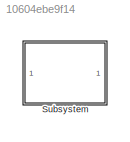
MODEL slx_10604ebe9f14
KIND library
CONFIG AbsTol = auto
CONFIG EnableMultiTasking = off
CONFIG FixedStep = auto
CONFIG MaxStep = auto
CONFIG MinStep = auto
CONFIG RelTol = 1e-3
CONFIG SampleTimeConstraint = Unconstrained
CONFIG Solver = VariableStepAuto
CONFIG SolverName = VariableStepAuto
CONFIG StartTime = 0.0
CONFIG StopTime = 10.0
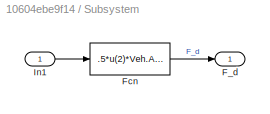
BLOCK [SubSystem] Subsystem
  Ports = [1, 1]
  RequestExecContextInheritance = off
BLOCK [Outport] Subsystem/F_d
BLOCK [Fcn] Subsystem/Fcn
  Expr = .5*u(2)*Veh.A_ref*Veh.Cd*u^2*sgn(u(1))*-1
BLOCK [Inport] Subsystem/In1
LINE Subsystem/Fcn:1 -> Subsystem/F_d:1
LINE Subsystem/In1:1 -> Subsystem/Fcn:1
